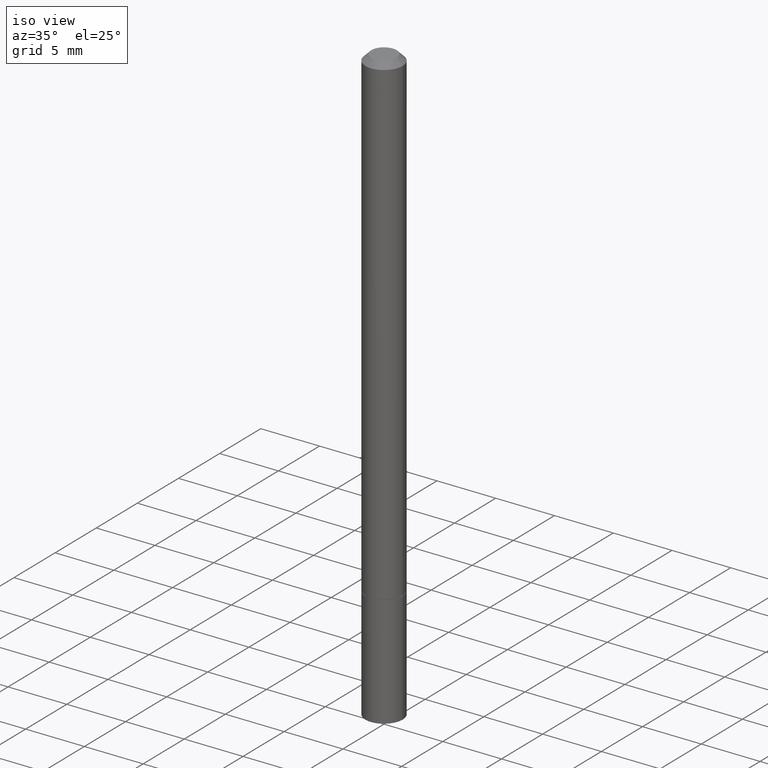
[diagram: clean part render]
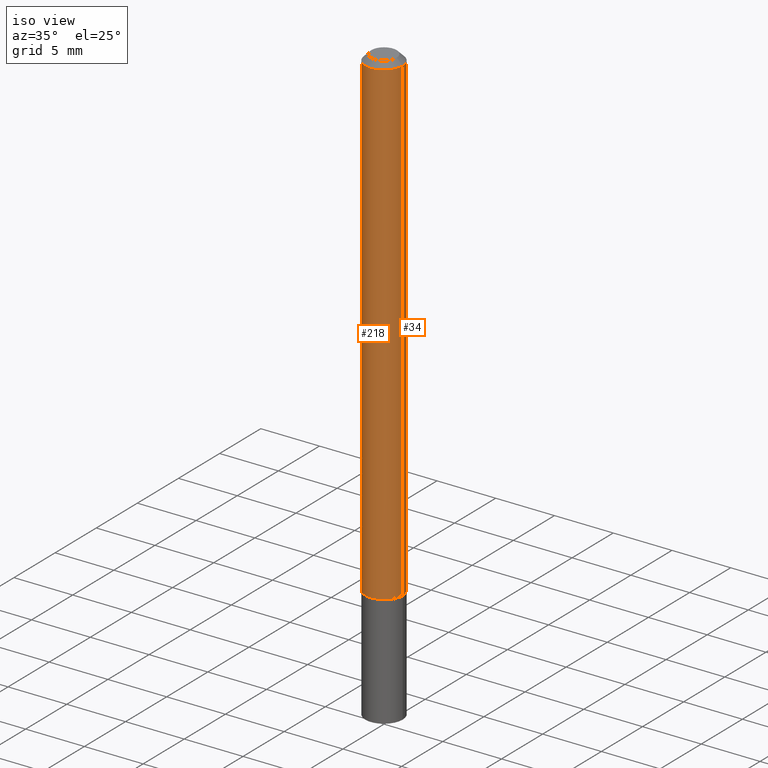
[diagram: same view with one multi-face feature highlighted, each face labeled with its STEP entity id]
A machine part, iso view. The highlighted faces form ONE feature: a constant-radius fillet chain: 2 tangent blend faces with common blend radius 1.5875 mm. The faces share edges in the B-rep.
Their STEP definitions:
[1] entity #34 (Cylinder):
#10 = DIRECTION ( 'NONE',  ( 1.000000000000000000, -6.982962677686266711E-15, 0.000000000000000000 ) ) ;
#12 = CARTESIAN_POINT ( 'NONE',  ( 0.06249999999999991673, -4.364351673553910778E-16, 3.047610484872455667E-30 ) ) ;
#27 = LINE ( 'NONE', #140, #262 ) ;
#28 = AXIS2_PLACEMENT_3D ( 'NONE', #61, #285, #366 ) ;
#34 = ADVANCED_FACE ( 'NONE', ( #60 ), #288, .T. ) ;
#36 = ORIENTED_EDGE ( 'NONE', *, *, #348, .F. ) ;
#42 = CARTESIAN_POINT ( 'NONE',  ( 4.890937612370274910E-31, -6.982962677686295307E-17, -0.02000000000000000736 ) ) ;
#60 = FACE_OUTER_BOUND ( 'NONE', #304, .T. ) ;
#61 = CARTESIAN_POINT ( 'NONE',  ( 3.971441341244661927E-29, -5.670165694281268417E-15, -1.623999999999999888 ) ) ;
#72 = ORIENTED_EDGE ( 'NONE', *, *, #309, .F. ) ;
#76 = VECTOR ( 'NONE', #128, 39.37007874015748143 ) ;
#77 = AXIS2_PLACEMENT_3D ( 'NONE', #340, #203, #316 ) ;
#78 = CIRCLE ( 'NONE', #28, 0.06250000000000001388 ) ;
#110 = CARTESIAN_POINT ( 'NONE',  ( -0.06249999999999981265, 3.666055405785273851E-16, -0.02000000000000000736 ) ) ;
#117 = DIRECTION ( 'NONE',  ( -2.445468806185136597E-29, 3.491481338843145583E-15, 1.000000000000000000 ) ) ;
#127 = ORIENTED_EDGE ( 'NONE', *, *, #197, .T. ) ;
#128 = DIRECTION ( 'NONE',  ( -2.445468806185136877E-29, 3.491481338843145188E-15, 1.000000000000000000 ) ) ;
#133 = VERTEX_POINT ( 'NONE', #110 ) ;
#140 = CARTESIAN_POINT ( 'NONE',  ( -0.06249999999999991673, 4.440892098500620245E-16, -3.074334431409311910E-30 ) ) ;
#153 = EDGE_CURVE ( 'NONE', #184, #217, #78, .T. ) ;
#179 = CARTESIAN_POINT ( 'NONE',  ( -0.06250000000000001388, -2.425908450678998508E-15, -1.623999999999999888 ) ) ;
#184 = VERTEX_POINT ( 'NONE', #201 ) ;
#197 = EDGE_CURVE ( 'NONE', #217, #133, #27, .T. ) ;
#201 = CARTESIAN_POINT ( 'NONE',  ( 0.06250000000000001388, -6.106600861636660086E-15, -1.623999999999999888 ) ) ;
#203 = DIRECTION ( 'NONE',  ( -2.445468806185136597E-29, 3.491481338843145583E-15, 1.000000000000000000 ) ) ;
#217 = VERTEX_POINT ( 'NONE', #179 ) ;
#219 = VERTEX_POINT ( 'NONE', #299 ) ;
#262 = VECTOR ( 'NONE', #313, 39.37007874015748143 ) ;
#269 = LINE ( 'NONE', #12, #76 ) ;
#271 = ORIENTED_EDGE ( 'NONE', *, *, #153, .T. ) ;
#285 = DIRECTION ( 'NONE',  ( -2.445468806185136597E-29, 3.491481338843145583E-15, 1.000000000000000000 ) ) ;
#288 = CYLINDRICAL_SURFACE ( 'NONE', #77, 0.06249999999999991673 ) ;
#299 = CARTESIAN_POINT ( 'NONE',  ( 0.06249999999999981265, -4.986107516375823445E-16, -0.02000000000000000736 ) ) ;
#304 = EDGE_LOOP ( 'NONE', ( #271, #127, #72, #36 ) ) ;
#309 = EDGE_CURVE ( 'NONE', #219, #133, #345, .T. ) ;
#313 = DIRECTION ( 'NONE',  ( -2.445468806185136877E-29, 3.491481338843145188E-15, 1.000000000000000000 ) ) ;
#316 = DIRECTION ( 'NONE',  ( 1.000000000000000000, -6.982962677686266711E-15, 4.876176775795935793E-29 ) ) ;
#319 = AXIS2_PLACEMENT_3D ( 'NONE', #42, #117, #10 ) ;
#340 = CARTESIAN_POINT ( 'NONE',  ( 0.000000000000000000, 0.000000000000000000, 0.000000000000000000 ) ) ;
#345 = CIRCLE ( 'NONE', #319, 0.06249999999999981265 ) ;
#348 = EDGE_CURVE ( 'NONE', #184, #219, #269, .T. ) ;
#366 = DIRECTION ( 'NONE',  ( 1.000000000000000000, -6.982962677686261189E-15, 0.000000000000000000 ) ) ;
[2] entity #218 (Cylinder):
#12 = CARTESIAN_POINT ( 'NONE',  ( 0.06249999999999991673, -4.364351673553910778E-16, 3.047610484872455667E-30 ) ) ;
#15 = AXIS2_PLACEMENT_3D ( 'NONE', #227, #342, #263 ) ;
#20 = ORIENTED_EDGE ( 'NONE', *, *, #197, .F. ) ;
#27 = LINE ( 'NONE', #140, #262 ) ;
#32 = CYLINDRICAL_SURFACE ( 'NONE', #298, 0.06249999999999991673 ) ;
#40 = EDGE_CURVE ( 'NONE', #217, #184, #339, .T. ) ;
#70 = CARTESIAN_POINT ( 'NONE',  ( 0.000000000000000000, 0.000000000000000000, 0.000000000000000000 ) ) ;
#76 = VECTOR ( 'NONE', #128, 39.37007874015748143 ) ;
#89 = CIRCLE ( 'NONE', #322, 0.06249999999999981265 ) ;
#97 = ORIENTED_EDGE ( 'NONE', *, *, #40, .T. ) ;
#101 = EDGE_LOOP ( 'NONE', ( #20, #97, #356, #300 ) ) ;
#110 = CARTESIAN_POINT ( 'NONE',  ( -0.06249999999999981265, 3.666055405785273851E-16, -0.02000000000000000736 ) ) ;
#119 = DIRECTION ( 'NONE',  ( 1.000000000000000000, -6.982962677686266711E-15, 4.876176775795935793E-29 ) ) ;
#128 = DIRECTION ( 'NONE',  ( -2.445468806185136877E-29, 3.491481338843145188E-15, 1.000000000000000000 ) ) ;
#133 = VERTEX_POINT ( 'NONE', #110 ) ;
#140 = CARTESIAN_POINT ( 'NONE',  ( -0.06249999999999991673, 4.440892098500620245E-16, -3.074334431409311910E-30 ) ) ;
#147 = CARTESIAN_POINT ( 'NONE',  ( 4.890937612370274910E-31, -6.982962677686295307E-17, -0.02000000000000000736 ) ) ;
#179 = CARTESIAN_POINT ( 'NONE',  ( -0.06250000000000001388, -2.425908450678998508E-15, -1.623999999999999888 ) ) ;
#184 = VERTEX_POINT ( 'NONE', #201 ) ;
#197 = EDGE_CURVE ( 'NONE', #217, #133, #27, .T. ) ;
#201 = CARTESIAN_POINT ( 'NONE',  ( 0.06250000000000001388, -6.106600861636660086E-15, -1.623999999999999888 ) ) ;
#210 = DIRECTION ( 'NONE',  ( 1.000000000000000000, -6.982962677686266711E-15, 0.000000000000000000 ) ) ;
#217 = VERTEX_POINT ( 'NONE', #179 ) ;
#218 = ADVANCED_FACE ( 'NONE', ( #232 ), #32, .T. ) ;
#219 = VERTEX_POINT ( 'NONE', #299 ) ;
#227 = CARTESIAN_POINT ( 'NONE',  ( 3.971441341244661927E-29, -5.670165694281268417E-15, -1.623999999999999888 ) ) ;
#232 = FACE_OUTER_BOUND ( 'NONE', #101, .T. ) ;
#262 = VECTOR ( 'NONE', #313, 39.37007874015748143 ) ;
#263 = DIRECTION ( 'NONE',  ( 1.000000000000000000, -6.982962677686261189E-15, 0.000000000000000000 ) ) ;
#267 = DIRECTION ( 'NONE',  ( -2.445468806185136597E-29, 3.491481338843145583E-15, 1.000000000000000000 ) ) ;
#269 = LINE ( 'NONE', #12, #76 ) ;
#298 = AXIS2_PLACEMENT_3D ( 'NONE', #70, #301, #119 ) ;
#299 = CARTESIAN_POINT ( 'NONE',  ( 0.06249999999999981265, -4.986107516375823445E-16, -0.02000000000000000736 ) ) ;
#300 = ORIENTED_EDGE ( 'NONE', *, *, #336, .F. ) ;
#301 = DIRECTION ( 'NONE',  ( -2.445468806185136597E-29, 3.491481338843145583E-15, 1.000000000000000000 ) ) ;
#313 = DIRECTION ( 'NONE',  ( -2.445468806185136877E-29, 3.491481338843145188E-15, 1.000000000000000000 ) ) ;
#322 = AXIS2_PLACEMENT_3D ( 'NONE', #147, #267, #210 ) ;
#336 = EDGE_CURVE ( 'NONE', #133, #219, #89, .T. ) ;
#339 = CIRCLE ( 'NONE', #15, 0.06250000000000001388 ) ;
#342 = DIRECTION ( 'NONE',  ( -2.445468806185136597E-29, 3.491481338843145583E-15, 1.000000000000000000 ) ) ;
#348 = EDGE_CURVE ( 'NONE', #184, #219, #269, .T. ) ;
#356 = ORIENTED_EDGE ( 'NONE', *, *, #348, .T. ) ;